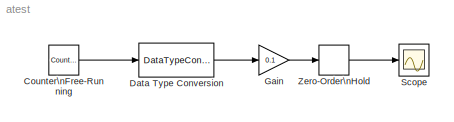
MODEL atest
KIND model
BLOCK [Reference] Counter\nFree-Running  REF=simulink/Sources/Counter\nFree-Running
  FunctionWithSeparateData = off
  NumBits = 4
  Ports = [0, 1]
  RTWMemSecDataConstants = Inherit from model
  RTWMemSecDataInternal = Inherit from model
  RTWMemSecDataParameters = Inherit from model
  RTWMemSecFuncExecute = Inherit from model
  RTWMemSecFuncInitTerm = Inherit from model
  SID = 17
  ShowPortLabels = FromPortIcon
  SourceBlock = simulink/Sources/Counter\nFree-Running
  SourceProductBaseCode = SL
  SourceProductName = Simulink
  SourceType = Counter Free-Running
  SystemSampleTime = -1
  tsamp = -1
BLOCK [DataTypeConversion] Data Type Conversion
  RndMeth = Floor
  SID = 18
  SaturateOnIntegerOverflow = off
BLOCK [Gain] Gain
  Gain = 0.1
  SID = 6
BLOCK [Scope] Scope
  Floating = off
  NumInputPorts = 1
  Ports = [1]
  SID = 8
  ScopeSpecificationString = C++SS(StrPVP('Location','[884, 475, 1208, 716]'),StrPVP('Open','off'),MxPVP('AxesTitles',54,'struct(''axes1'',''%<SignalLabel>'')'),StrPVP('TimeRange','0.2'),StrPVP('YMin','0'),StrPVP('YMax','2'),StrPVP('DataFormat','StructureWithTime'),StrPVP('LimitDataPoints','on'),StrPVP('Decimation','1'),StrPVP('BlockParamSampleInput','off'))
BLOCK [ZeroOrderHold] Zero-Order\nHold
  SID = 9
  SampleTime = 0.02
LINE Counter\nFree-Running:1 -> Data Type Conversion:1
LINE Data Type Conversion:1 -> Gain:1
LINE Gain:1 -> Zero-Order\nHold:1
LINE Zero-Order\nHold:1 -> Scope:1
